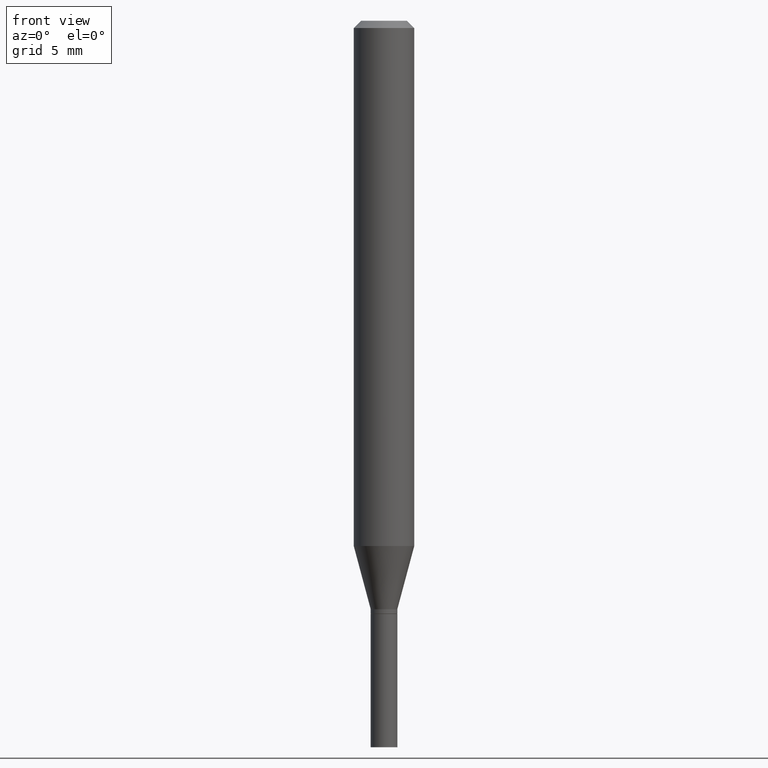
[diagram: clean part render]
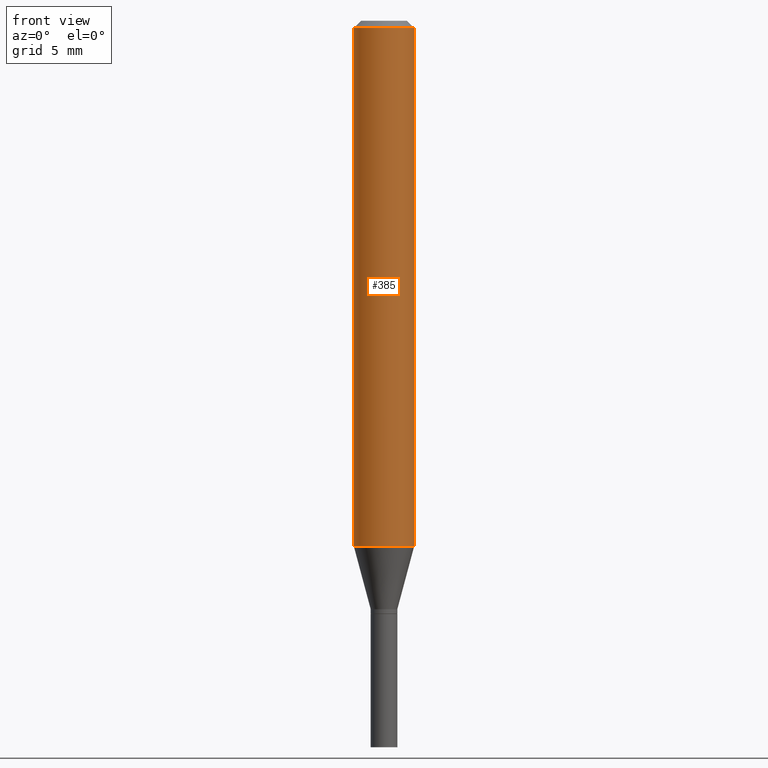
[diagram: same view with one face highlighted and labeled with its STEP entity id]
A machine part, front view. The second image highlights one B-rep face of the part: STEP entity #385.
In plain terms, the highlighted cylindrical surface (edge-blend (fillet) strip) has radius 1.5875 mm, axis along (-0, 0, 1).
Its self-contained STEP definition (entity closure, byte-faithful):
#13 = EDGE_CURVE ( 'NONE', #367, #176, #313, .T. ) ;
#22 = LINE ( 'NONE', #425, #67 ) ;
#30 = CIRCLE ( 'NONE', #251, 0.06250000000000000000 ) ;
#36 = ORIENTED_EDGE ( 'NONE', *, *, #13, .T. ) ;
#49 = CARTESIAN_POINT ( 'NONE',  ( 0.06250000000000000000, -4.222521492791372833E-15, -1.084378221735089909 ) ) ;
#67 = VECTOR ( 'NONE', #197, 39.37007874015748143 ) ;
#70 = DIRECTION ( 'NONE',  ( 1.000000000000000000, -6.982962677686266711E-15, 0.000000000000000000 ) ) ;
#86 = DIRECTION ( 'NONE',  ( 1.000000000000000000, -6.982962677686266711E-15, 4.876176775795935793E-29 ) ) ;
#89 = CARTESIAN_POINT ( 'NONE',  ( -0.06250000000000000000, -1.475140062909251703E-15, -0.01499999999999999944 ) ) ;
#93 = FACE_OUTER_BOUND ( 'NONE', #139, .T. ) ;
#96 = DIRECTION ( 'NONE',  ( -2.445468806185136597E-29, 3.491481338843145583E-15, 1.000000000000000000 ) ) ;
#102 = VERTEX_POINT ( 'NONE', #89 ) ;
#139 = EDGE_LOOP ( 'NONE', ( #446, #36, #401, #438 ) ) ;
#145 = EDGE_CURVE ( 'NONE', #176, #404, #267, .T. ) ;
#167 = CARTESIAN_POINT ( 'NONE',  ( 0.000000000000000000, 0.000000000000000000, 0.000000000000000000 ) ) ;
#176 = VERTEX_POINT ( 'NONE', #49 ) ;
#187 = CARTESIAN_POINT ( 'NONE',  ( 2.651813115359671942E-29, -3.786086325435981164E-15, -1.084378221735089909 ) ) ;
#197 = DIRECTION ( 'NONE',  ( -2.445468806185136877E-29, 3.491481338843145188E-15, 1.000000000000000000 ) ) ;
#199 = CYLINDRICAL_SURFACE ( 'NONE', #331, 0.06250000000000000000 ) ;
#211 = DIRECTION ( 'NONE',  ( -2.445468806185136597E-29, 3.491481338843145583E-15, 1.000000000000000000 ) ) ;
#251 = AXIS2_PLACEMENT_3D ( 'NONE', #292, #257, #70 ) ;
#257 = DIRECTION ( 'NONE',  ( -2.445468806185136597E-29, 3.491481338843145583E-15, 1.000000000000000000 ) ) ;
#267 = LINE ( 'NONE', #411, #272 ) ;
#272 = VECTOR ( 'NONE', #378, 39.37007874015748143 ) ;
#291 = DIRECTION ( 'NONE',  ( 1.000000000000000000, -6.982962677686262766E-15, 0.000000000000000000 ) ) ;
#292 = CARTESIAN_POINT ( 'NONE',  ( 3.668203209277705088E-31, -5.237222008264718399E-17, -0.01499999999999999944 ) ) ;
#298 = EDGE_CURVE ( 'NONE', #102, #404, #30, .T. ) ;
#313 = CIRCLE ( 'NONE', #429, 0.06250000000000000000 ) ;
#315 = CARTESIAN_POINT ( 'NONE',  ( -0.06250000000000000000, -3.341997115585918942E-15, -1.084378221735089909 ) ) ;
#331 = AXIS2_PLACEMENT_3D ( 'NONE', #167, #96, #86 ) ;
#367 = VERTEX_POINT ( 'NONE', #315 ) ;
#373 = EDGE_CURVE ( 'NONE', #367, #102, #22, .T. ) ;
#378 = DIRECTION ( 'NONE',  ( -2.445468806185136877E-29, 3.491481338843145188E-15, 1.000000000000000000 ) ) ;
#385 = ADVANCED_FACE ( 'NONE', ( #93 ), #199, .T. ) ;
#401 = ORIENTED_EDGE ( 'NONE', *, *, #145, .T. ) ;
#404 = VERTEX_POINT ( 'NONE', #418 ) ;
#411 = CARTESIAN_POINT ( 'NONE',  ( 0.06250000000000000000, -4.364351673553916694E-16, 3.047610484872459871E-30 ) ) ;
#418 = CARTESIAN_POINT ( 'NONE',  ( 0.06250000000000000000, -4.888073874380388472E-16, -0.01499999999999999944 ) ) ;
#425 = CARTESIAN_POINT ( 'NONE',  ( -0.06250000000000000000, 4.440892098500626162E-16, -3.074334431409316114E-30 ) ) ;
#429 = AXIS2_PLACEMENT_3D ( 'NONE', #187, #211, #291 ) ;
#438 = ORIENTED_EDGE ( 'NONE', *, *, #298, .F. ) ;
#446 = ORIENTED_EDGE ( 'NONE', *, *, #373, .F. ) ;